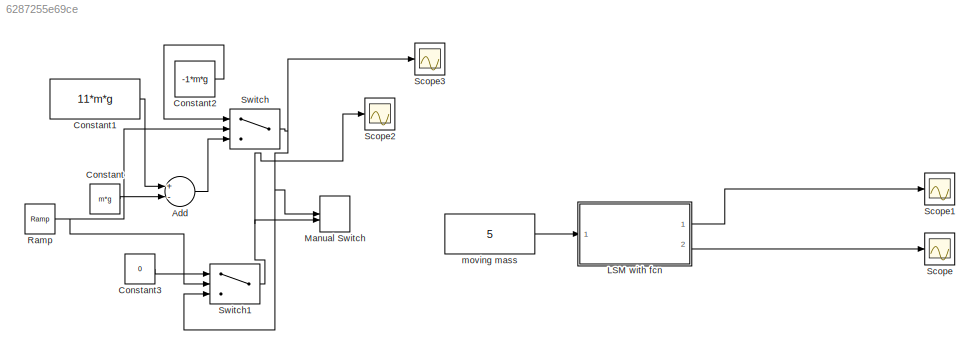
MODEL slx_6287255e69ce
KIND model
CONFIG AbsTol = auto
CONFIG FixedStep = auto
CONFIG MaxStep = auto
CONFIG MinStep = auto
CONFIG RelTol = 1e-3
CONFIG SampleTimeConstraint = Unconstrained
CONFIG Solver = VariableStepAuto
CONFIG SolverMode = Auto
CONFIG SolverName = VariableStepAuto
CONFIG StartTime = 0.0
CONFIG StopTime = 2
BLOCK [Sum] Add
  InputSameDT = off
  Inputs = +-
  OutDataTypeStr = Inherit: Inherit via internal rule
  Ports = [2, 1]
  SaturateOnIntegerOverflow = off
BLOCK [Constant] Constant
  Value = m*g
BLOCK [Constant] Constant1
  Value = 11*m*g
BLOCK [Constant] Constant2
  Value = -1*m*g
BLOCK [Constant] Constant3
  Value = 0
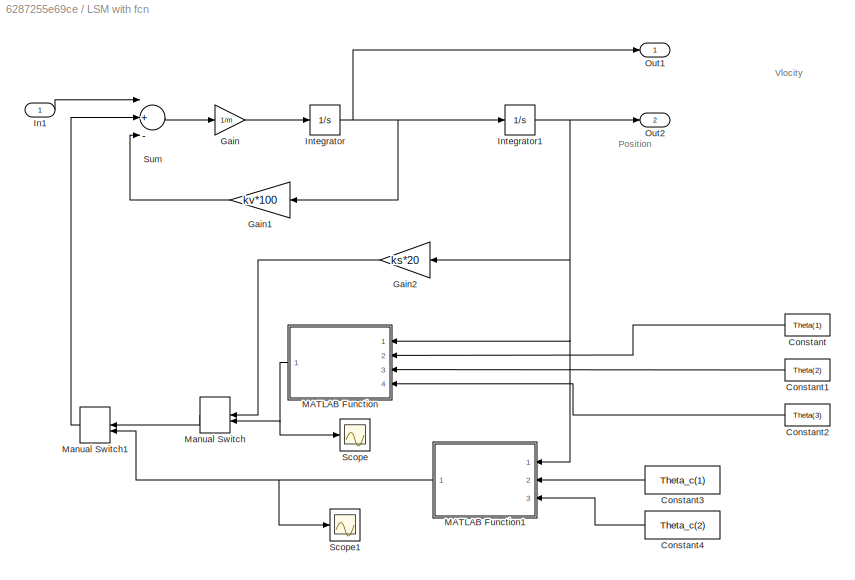
BLOCK [SubSystem] LSM with fcn
  Ports = [1, 2]
  RequestExecContextInheritance = off
  Variant = off
BLOCK [Constant] LSM with fcn/Constant
  Value = Theta(1)
BLOCK [Constant] LSM with fcn/Constant1
  Value = Theta(2)
BLOCK [Constant] LSM with fcn/Constant2
  Value = Theta(3)
BLOCK [Constant] LSM with fcn/Constant3
  Value = Theta_c(1)
BLOCK [Constant] LSM with fcn/Constant4
  Value = Theta_c(2)
BLOCK [Gain] LSM with fcn/Gain
  Gain = 1/m
  OutDataTypeStr = Inherit: Inherit via internal rule
  ParamDataTypeStr = Inherit: Inherit via internal rule
  SaturateOnIntegerOverflow = off
BLOCK [Gain] LSM with fcn/Gain1
  Gain = kv*100
  OutDataTypeStr = Inherit: Inherit via internal rule
  ParamDataTypeStr = Inherit: Inherit via internal rule
  SaturateOnIntegerOverflow = off
BLOCK [Gain] LSM with fcn/Gain2
  Gain = ks*20
  OutDataTypeStr = Inherit: Inherit via internal rule
  ParamDataTypeStr = Inherit: Inherit via internal rule
  SaturateOnIntegerOverflow = off
BLOCK [Inport] LSM with fcn/In1
  IconDisplay = Port number
BLOCK [Integrator] LSM with fcn/Integrator
  Ports = [1, 1]
BLOCK [Integrator] LSM with fcn/Integrator1
  Ports = [1, 1]
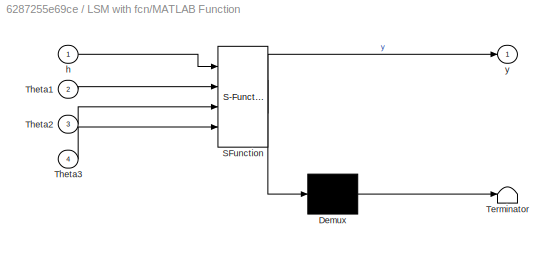
BLOCK [SubSystem] LSM with fcn/MATLAB Function
  ErrorFcn = Stateflow.Translate.translate
  PermitHierarchicalResolution = ExplicitOnly
  Ports = [4, 1]
  RequestExecContextInheritance = off
  SFBlockType = MATLAB Function
  TreatAsAtomicUnit = on
  Variant = off
BLOCK [Demux] LSM with fcn/MATLAB Function/ Demux 
  Outputs = 1
  Ports = [1, 1]
BLOCK [S-Function] LSM with fcn/MATLAB Function/ SFunction 
  EnableBusSupport = on
  FunctionName = sf_sfun
  PortCounts = [4 2]
  Ports = [4, 2]
  SFunctionDeploymentMode = off
  Tag = Stateflow S-Function LSM_with_Simulek 2
BLOCK [Terminator] LSM with fcn/MATLAB Function/ Terminator 
BLOCK [Inport] LSM with fcn/MATLAB Function/Theta1
  IconDisplay = Port number
  Port = 2
BLOCK [Inport] LSM with fcn/MATLAB Function/Theta2
  IconDisplay = Port number
  Port = 3
BLOCK [Inport] LSM with fcn/MATLAB Function/Theta3
  IconDisplay = Port number
  Port = 4
BLOCK [Inport] LSM with fcn/MATLAB Function/h
  IconDisplay = Port number
BLOCK [Outport] LSM with fcn/MATLAB Function/y
  IconDisplay = Port number
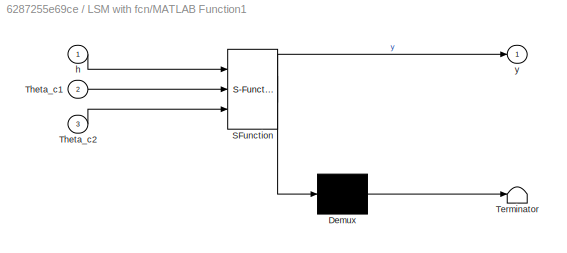
BLOCK [SubSystem] LSM with fcn/MATLAB Function1
  ErrorFcn = Stateflow.Translate.translate
  PermitHierarchicalResolution = ExplicitOnly
  Ports = [3, 1]
  RequestExecContextInheritance = off
  SFBlockType = MATLAB Function
  TreatAsAtomicUnit = on
  Variant = off
BLOCK [Demux] LSM with fcn/MATLAB Function1/ Demux 
  Outputs = 1
  Ports = [1, 1]
BLOCK [S-Function] LSM with fcn/MATLAB Function1/ SFunction 
  EnableBusSupport = on
  FunctionName = sf_sfun
  PortCounts = [3 2]
  Ports = [3, 2]
  SFunctionDeploymentMode = off
  Tag = Stateflow S-Function LSM_with_Simulek 1
BLOCK [Terminator] LSM with fcn/MATLAB Function1/ Terminator 
BLOCK [Inport] LSM with fcn/MATLAB Function1/Theta_c1
  IconDisplay = Port number
  Port = 2
BLOCK [Inport] LSM with fcn/MATLAB Function1/Theta_c2
  IconDisplay = Port number
  Port = 3
BLOCK [Inport] LSM with fcn/MATLAB Function1/h
  IconDisplay = Port number
BLOCK [Outport] LSM with fcn/MATLAB Function1/y
  IconDisplay = Port number
BLOCK [ManualSwitch] LSM with fcn/Manual Switch
  CurrentSetting = 0
BLOCK [ManualSwitch] LSM with fcn/Manual Switch1
  CurrentSetting = 0
BLOCK [Outport] LSM with fcn/Out1
  IconDisplay = Port number
BLOCK [Outport] LSM with fcn/Out2
  IconDisplay = Port number
  Port = 2
BLOCK [Scope] LSM with fcn/Scope
  Ports = [1]
  ScopeSpecificationString = Simulink.scopes.TimeScopeBlockCfg('CurrentConfiguration', extmgr.ConfigurationSet(extmgr.Configuration('Core','General UI',true),extmgr.Configuration('Core','Source UI',true),extmgr.Configuration('Sources','WiredSimulink',true,'DataLoggingVariableName','ScopeData1'),extmgr.Configuration('Visuals','Time Domain',true,'SerializedDisplays',{struct('MinYLimReal','-0.76945','MaxYLimReal','5.56144','YLab...<+1403ch>
BLOCK [Scope] LSM with fcn/Scope1
  Ports = [1]
  ScopeSpecificationString = Simulink.scopes.TimeScopeBlockCfg('CurrentConfiguration', extmgr.ConfigurationSet(extmgr.Configuration('Core','General UI',true),extmgr.Configuration('Core','Source UI',true),extmgr.Configuration('Sources','WiredSimulink',true,'DataLoggingVariableName','ScopeData2'),extmgr.Configuration('Visuals','Time Domain',true,'SerializedDisplays',{struct('MinYLimReal','-0.61423','MaxYLimReal','5.52803','YLab...<+1404ch>
BLOCK [Sum] LSM with fcn/Sum
  InputSameDT = off
  Inputs = |+--
  OutDataTypeStr = Inherit: Inherit via internal rule
  Ports = [3, 1]
  SaturateOnIntegerOverflow = off
BLOCK [ManualSwitch] Manual Switch
  CurrentSetting = 0
BLOCK [Reference] Ramp  REF=simulink/Sources/Ramp
  Ports = [0, 1]
  SourceBlock = simulink/Sources/Ramp
  SourceType = Ramp
BLOCK [Scope] Scope
  Ports = [1]
  ScopeSpecificationString = Simulink.scopes.TimeScopeBlockCfg('CurrentConfiguration', extmgr.ConfigurationSet(extmgr.Configuration('Core','General UI',true),extmgr.Configuration('Core','Source UI',true),extmgr.Configuration('Sources','WiredSimulink',true,'DataLoggingVariableName','ScopeData1'),extmgr.Configuration('Visuals','Time Domain',true,'SerializedDisplays',{struct('MinYLimReal','-11.00794','MaxYLimReal','1.18568','YLa...<+1530ch>
BLOCK [Scope] Scope1
  Ports = [1]
  ScopeSpecificationString = Simulink.scopes.TimeScopeBlockCfg('CurrentConfiguration', extmgr.ConfigurationSet(extmgr.Configuration('Core','General UI',true),extmgr.Configuration('Core','Source UI',true),extmgr.Configuration('Sources','WiredSimulink',true,'DataLoggingVariableName','ScopeData2'),extmgr.Configuration('Visuals','Time Domain',true,'SerializedDisplays',{struct('MinYLimReal','-0.00049','MaxYLimReal','0.00438','YLab...<+1473ch>
BLOCK [Scope] Scope2
  Ports = [1]
  ScopeSpecificationString = Simulink.scopes.TimeScopeBlockCfg('CurrentConfiguration', extmgr.ConfigurationSet(extmgr.Configuration('Core','General UI',true),extmgr.Configuration('Core','Source UI',true),extmgr.Configuration('Sources','WiredSimulink',true,'DataLoggingVariableName','ScopeData3'),extmgr.Configuration('Visuals','Time Domain',true,'SerializedDisplays',{struct('MinYLimReal','-23298.75','MaxYLimReal','111588.75','Y...<+1481ch>
BLOCK [Scope] Scope3
  Ports = [1]
  ScopeSpecificationString = Simulink.scopes.TimeScopeBlockCfg('CurrentConfiguration', extmgr.ConfigurationSet(extmgr.Configuration('Core','General UI',true),extmgr.Configuration('Core','Source UI',true),extmgr.Configuration('Sources','WiredSimulink',true),extmgr.Configuration('Visuals','Time Domain',true,'SerializedDisplays',{struct('MinYLimReal','-23298.75','MaxYLimReal','111588.75','YLabelReal','','MinYLimMag','   0.00000'...<+1441ch>
BLOCK [Switch] Switch
  Criteria = u2 > Threshold
  InputSameDT = off
  SaturateOnIntegerOverflow = off
  Threshold = 100
BLOCK [Switch] Switch1
  Criteria = u2 > Threshold
  InputSameDT = off
  SaturateOnIntegerOverflow = off
  Threshold = 300
BLOCK [Constant] moving mass
  Value = 5
ANNOTATION LSM with fcn: Vlocity
ANNOTATION LSM with fcn: Position
LINE Add:1 -> Switch:3
LINE Constant1:1 -> Add:1
LINE Constant2:1 -> Switch:1
LINE Constant3:1 -> Switch1:1
LINE Constant:1 -> Add:2
LINE LSM with fcn/Constant1:1 -> LSM with fcn/MATLAB Function:3
LINE LSM with fcn/Constant2:1 -> LSM with fcn/MATLAB Function:4
LINE LSM with fcn/Constant3:1 -> LSM with fcn/MATLAB Function1:2
LINE LSM with fcn/Constant4:1 -> LSM with fcn/MATLAB Function1:3
LINE LSM with fcn/Constant:1 -> LSM with fcn/MATLAB Function:2
LINE LSM with fcn/Gain1:1 -> LSM with fcn/Sum:3
LINE LSM with fcn/Gain2:1 -> LSM with fcn/Manual Switch:1
LINE LSM with fcn/Gain:1 -> LSM with fcn/Integrator:1
LINE LSM with fcn/In1:1 -> LSM with fcn/Sum:1
NET LSM with fcn/Integrator1:1 -> LSM with fcn/Gain2:1, LSM with fcn/MATLAB Function1:1, LSM with fcn/MATLAB Function:1, LSM with fcn/Out2:1
NET LSM with fcn/Integrator:1 -> LSM with fcn/Gain1:1, LSM with fcn/Integrator1:1, LSM with fcn/Out1:1
NET LSM with fcn/MATLAB Function1:1 -> LSM with fcn/Manual Switch1:2, LSM with fcn/Scope1:1
NET LSM with fcn/MATLAB Function:1 -> LSM with fcn/Manual Switch:2, LSM with fcn/Scope:1
LINE LSM with fcn/Manual Switch1:1 -> LSM with fcn/Sum:2
LINE LSM with fcn/Manual Switch:1 -> LSM with fcn/Manual Switch1:1
LINE LSM with fcn/Sum:1 -> LSM with fcn/Gain:1
LINE LSM with fcn:1 -> Scope1:1
LINE LSM with fcn:2 -> Scope:1
NET Ramp:1 -> Switch1:2, Switch:2
NET Switch1:1 -> Manual Switch:2, Scope2:1
NET Switch:1 -> Manual Switch:1, Scope3:1, Switch1:3
LINE moving mass:1 -> LSM with fcn:1
note: NET lines group one-source signal fan-out (src -> all destinations, sorted); 1:1 wires keep LINE
CHART LSM with fcn/MATLAB Function1 states=1 transitions=1
  STATE_LABEL 'eML_blk_kernel()'
  STATE_LABEL 'SCRIPT:\nfunction y = fcn(h,Theta_c1,Theta_c2)\n\nh=Theta_c1*h^2+Theta_c2*h;\n\ny = h;\n\n%Constrained Least Squared Method'
CHART LSM with fcn/MATLAB Function states=1 transitions=1
  STATE_LABEL 'eML_blk_kernel()'
  STATE_LABEL 'SCRIPT:\nfunction y = fcn(h,Theta1,Theta2,Theta3)\n\nh=Theta1*h^2+Theta2*h+Theta3;\n\ny = h;'
